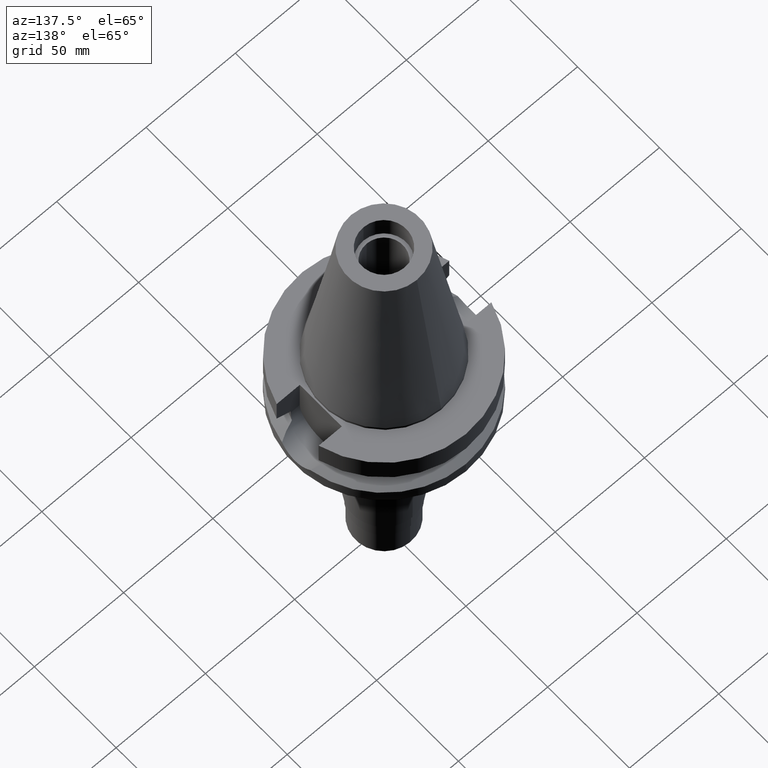
[diagram: clean part render]
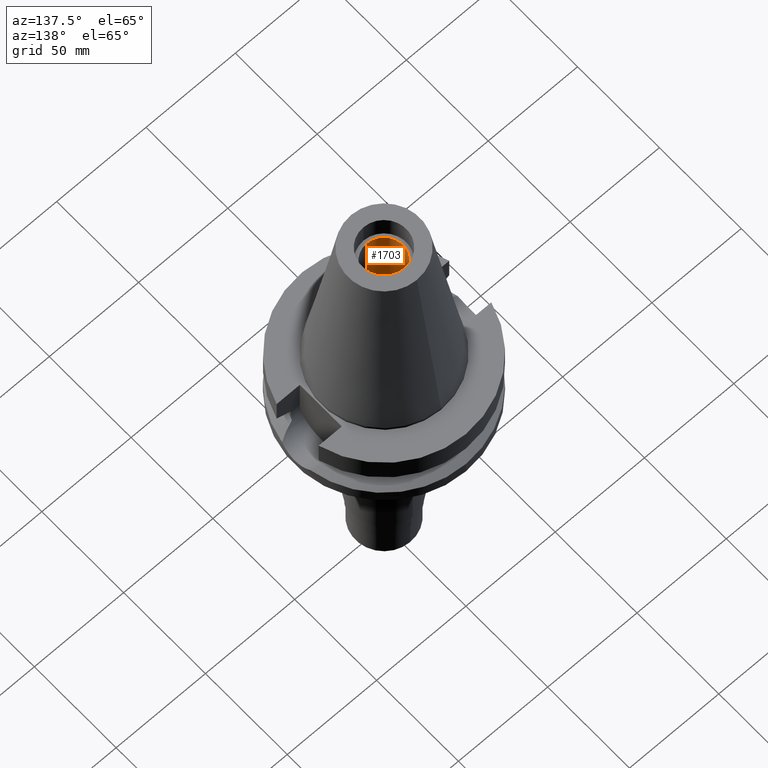
[diagram: same view with one face highlighted and labeled with its STEP entity id]
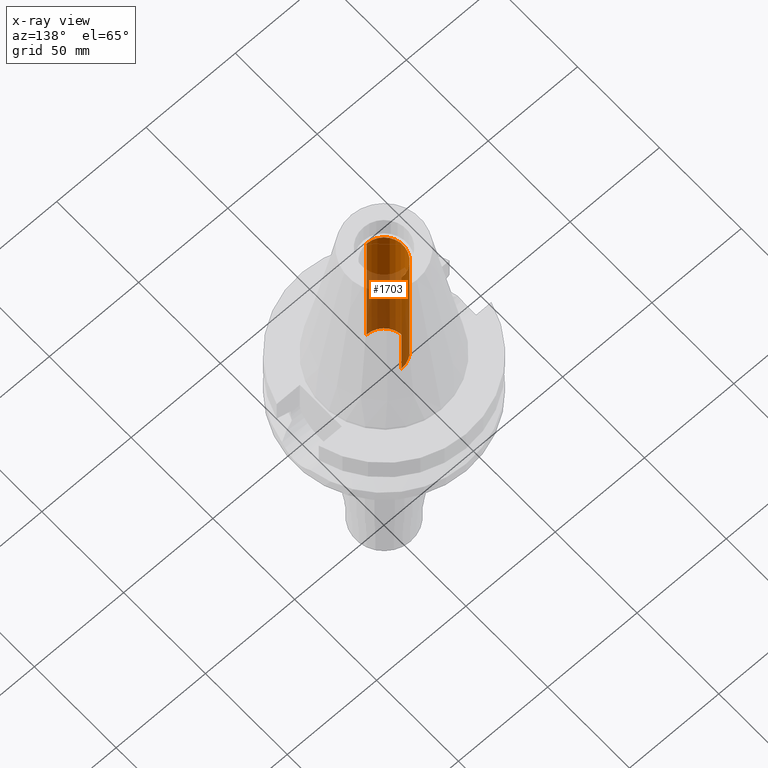
[diagram: x-ray of the same camera — body ghosted, the highlighted face saturated]
A machine part, auxiliary view. The second image highlights one B-rep face of the part: STEP entity #1703.
The next image is the same camera in x-ray: the body ghosted, the highlighted face saturated — about 60% of this face is hidden behind the body in this view.
In plain terms, the highlighted cylindrical surface (edge-blend (fillet) strip) has radius 10.6 mm, axis along (0, 0, -1).
Its self-contained STEP definition (entity closure, byte-faithful):
#450=CARTESIAN_POINT('',(0.E0,2.634705123686E-14,8.88E1));
#451=DIRECTION('',(0.E0,0.E0,1.E0));
#452=DIRECTION('',(0.E0,1.E0,0.E0));
#453=AXIS2_PLACEMENT_3D('',#450,#451,#452);
#455=DIRECTION('',(0.E0,0.E0,1.E0));
#456=VECTOR('',#455,8.88E1);
#457=CARTESIAN_POINT('',(0.E0,1.06E1,-1.847411112976E-13));
#458=LINE('',#457,#456);
#464=DIRECTION('',(0.E0,0.E0,1.E0));
#465=VECTOR('',#464,8.88E1);
#466=CARTESIAN_POINT('',(0.E0,-1.06E1,-1.847411112976E-13));
#467=LINE('',#466,#465);
#472=CARTESIAN_POINT('',(0.E0,2.634705123686E-14,-1.705302565824E-13));
#473=DIRECTION('',(0.E0,0.E0,-1.E0));
#474=DIRECTION('',(0.E0,-1.E0,0.E0));
#475=AXIS2_PLACEMENT_3D('',#472,#473,#474);
#822=CARTESIAN_POINT('',(0.E0,1.06E1,-1.847411112976E-13));
#823=VERTEX_POINT('',#822);
#824=CARTESIAN_POINT('',(0.E0,-1.06E1,-1.847411112976E-13));
#825=VERTEX_POINT('',#824);
#826=CARTESIAN_POINT('',(0.E0,1.06E1,8.88E1));
#827=VERTEX_POINT('',#826);
#828=CARTESIAN_POINT('',(0.E0,-1.06E1,8.88E1));
#829=VERTEX_POINT('',#828);
#1691=CARTESIAN_POINT('',(0.E0,2.634705123686E-14,1.1514E2));
#1692=DIRECTION('',(0.E0,0.E0,-1.E0));
#1693=DIRECTION('',(0.E0,-1.E0,0.E0));
#1694=AXIS2_PLACEMENT_3D('',#1691,#1692,#1693);
#1695=CYLINDRICAL_SURFACE('',#1694,1.06E1);
#1696=ORIENTED_EDGE('',*,*,#1674,.F.);
#1698=ORIENTED_EDGE('',*,*,#1697,.F.);
#1699=ORIENTED_EDGE('',*,*,#1677,.T.);
#1700=ORIENTED_EDGE('',*,*,#1657,.F.);
#1701=EDGE_LOOP('',(#1696,#1698,#1699,#1700));
#1702=FACE_OUTER_BOUND('',#1701,.F.);
#454=CIRCLE('',#453,1.06E1);
#476=CIRCLE('',#475,1.06E1);
#1657=EDGE_CURVE('',#827,#829,#454,.T.);
#1674=EDGE_CURVE('',#823,#827,#458,.T.);
#1677=EDGE_CURVE('',#825,#829,#467,.T.);
#1697=EDGE_CURVE('',#825,#823,#476,.T.);
#1703=ADVANCED_FACE('',(#1702),#1695,.F.);